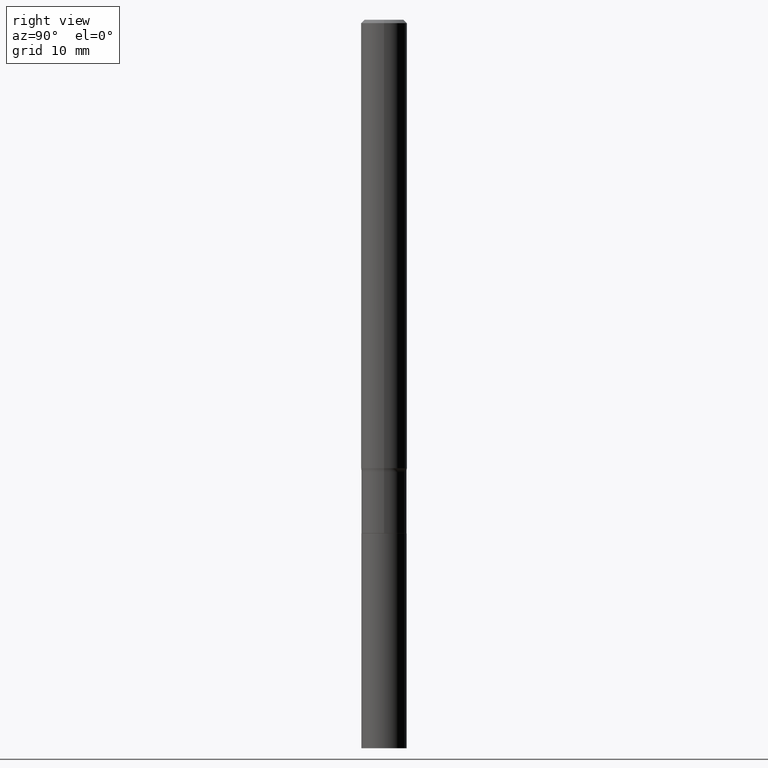
[diagram: clean part render]
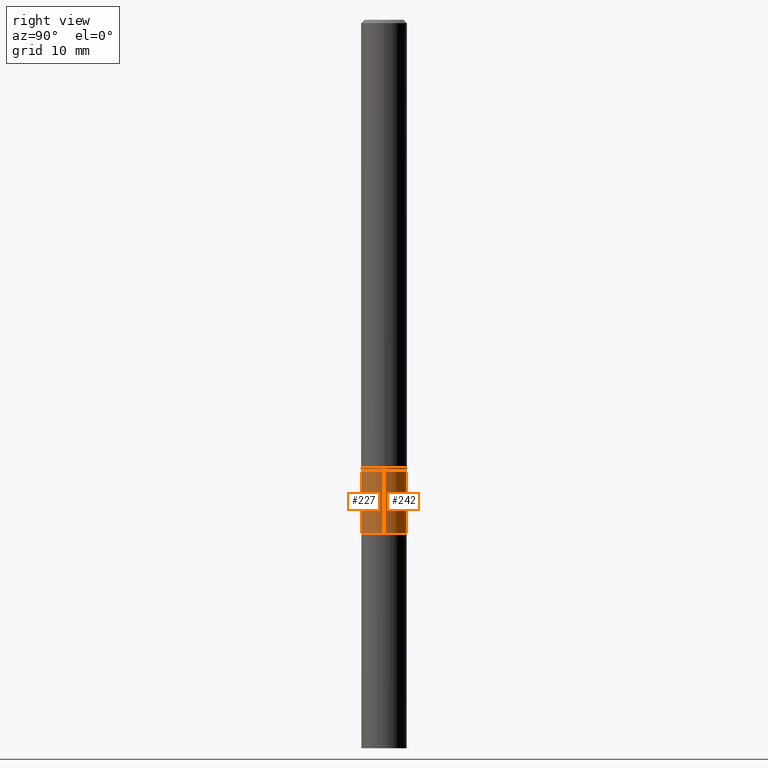
[diagram: same view with one multi-face feature highlighted, each face labeled with its STEP entity id]
A machine part, right view. The highlighted faces form ONE feature: a constant-radius fillet chain: 2 tangent blend faces with common blend radius 2.9502 mm. The faces share edges in the B-rep.
Their STEP definitions:
[1] entity #227 (Cylinder):
#22 = VERTEX_POINT ( 'NONE', #292 ) ;
#33 = EDGE_CURVE ( 'NONE', #215, #22, #85, .T. ) ;
#34 = ORIENTED_EDGE ( 'NONE', *, *, #419, .F. ) ;
#45 = CARTESIAN_POINT ( 'NONE',  ( -0.1161500000000000171, -7.826769944134901983E-15, -2.635699999999999932 ) ) ;
#46 = FACE_OUTER_BOUND ( 'NONE', #175, .T. ) ;
#62 = LINE ( 'NONE', #241, #460 ) ;
#85 = CIRCLE ( 'NONE', #264, 0.1161500000000000032 ) ;
#150 = LINE ( 'NONE', #291, #243 ) ;
#175 = EDGE_LOOP ( 'NONE', ( #415, #355, #283, #34 ) ) ;
#193 = EDGE_CURVE ( 'NONE', #22, #290, #150, .T. ) ;
#196 = CARTESIAN_POINT ( 'NONE',  ( 0.1161499999999999755, -8.912704413664895363E-15, -2.320400000000000240 ) ) ;
#215 = VERTEX_POINT ( 'NONE', #45 ) ;
#216 = AXIS2_PLACEMENT_3D ( 'NONE', #420, #308, #456 ) ;
#225 = CARTESIAN_POINT ( 'NONE',  ( 0.000000000000000000, 0.000000000000000000, 0.000000000000000000 ) ) ;
#227 = ADVANCED_FACE ( 'NONE', ( #46 ), #326, .T. ) ;
#241 = CARTESIAN_POINT ( 'NONE',  ( -0.1161499999999999894, 8.252953875853562903E-16, -5.713343107331072832E-30 ) ) ;
#243 = VECTOR ( 'NONE', #260, 39.37007874015748143 ) ;
#260 = DIRECTION ( 'NONE',  ( -2.445468806185136877E-29, 3.491481338843145188E-15, 1.000000000000000000 ) ) ;
#264 = AXIS2_PLACEMENT_3D ( 'NONE', #444, #448, #316 ) ;
#283 = ORIENTED_EDGE ( 'NONE', *, *, #193, .T. ) ;
#290 = VERTEX_POINT ( 'NONE', #196 ) ;
#291 = CARTESIAN_POINT ( 'NONE',  ( 0.1161499999999999894, -8.110711150132597459E-16, 5.663679325086978398E-30 ) ) ;
#292 = CARTESIAN_POINT ( 'NONE',  ( 0.1161500000000000032, -1.001356847980213890E-14, -2.635699999999999932 ) ) ;
#308 = DIRECTION ( 'NONE',  ( -2.445468806185136597E-29, 3.491481338843145583E-15, 1.000000000000000000 ) ) ;
#316 = DIRECTION ( 'NONE',  ( 1.000000000000000000, -6.982962677686265922E-15, 0.000000000000000000 ) ) ;
#319 = CIRCLE ( 'NONE', #216, 0.1161499999999999755 ) ;
#326 = CYLINDRICAL_SURFACE ( 'NONE', #339, 0.1161499999999999894 ) ;
#335 = CARTESIAN_POINT ( 'NONE',  ( -0.1161499999999999755, -7.826769944134901983E-15, -2.320400000000000240 ) ) ;
#338 = DIRECTION ( 'NONE',  ( 1.000000000000000000, -6.982962677686265922E-15, 4.876176775795935232E-29 ) ) ;
#339 = AXIS2_PLACEMENT_3D ( 'NONE', #225, #407, #338 ) ;
#345 = DIRECTION ( 'NONE',  ( -2.445468806185136877E-29, 3.491481338843145188E-15, 1.000000000000000000 ) ) ;
#355 = ORIENTED_EDGE ( 'NONE', *, *, #33, .T. ) ;
#358 = EDGE_CURVE ( 'NONE', #215, #440, #62, .T. ) ;
#407 = DIRECTION ( 'NONE',  ( -2.445468806185136597E-29, 3.491481338843145583E-15, 1.000000000000000000 ) ) ;
#415 = ORIENTED_EDGE ( 'NONE', *, *, #358, .F. ) ;
#419 = EDGE_CURVE ( 'NONE', #440, #290, #319, .T. ) ;
#420 = CARTESIAN_POINT ( 'NONE',  ( 5.674465817871991056E-29, -8.101633298651635617E-15, -2.320400000000000240 ) ) ;
#440 = VERTEX_POINT ( 'NONE', #335 ) ;
#444 = CARTESIAN_POINT ( 'NONE',  ( 6.445522132462164361E-29, -9.202497364788879155E-15, -2.635699999999999932 ) ) ;
#448 = DIRECTION ( 'NONE',  ( -2.445468806185136597E-29, 3.491481338843145583E-15, 1.000000000000000000 ) ) ;
#456 = DIRECTION ( 'NONE',  ( 1.000000000000000000, -6.982962677686267499E-15, 0.000000000000000000 ) ) ;
#460 = VECTOR ( 'NONE', #345, 39.37007874015748143 ) ;
[2] entity #242 (Cylinder):
#3 = ORIENTED_EDGE ( 'NONE', *, *, #358, .T. ) ;
#9 = DIRECTION ( 'NONE',  ( 1.000000000000000000, -6.982962677686265922E-15, 4.876176775795935232E-29 ) ) ;
#22 = VERTEX_POINT ( 'NONE', #292 ) ;
#28 = ORIENTED_EDGE ( 'NONE', *, *, #166, .T. ) ;
#45 = CARTESIAN_POINT ( 'NONE',  ( -0.1161500000000000171, -7.826769944134901983E-15, -2.635699999999999932 ) ) ;
#62 = LINE ( 'NONE', #241, #460 ) ;
#63 = AXIS2_PLACEMENT_3D ( 'NONE', #78, #334, #402 ) ;
#78 = CARTESIAN_POINT ( 'NONE',  ( 5.674465817871991056E-29, -8.101633298651635617E-15, -2.320400000000000240 ) ) ;
#83 = AXIS2_PLACEMENT_3D ( 'NONE', #375, #116, #445 ) ;
#86 = CARTESIAN_POINT ( 'NONE',  ( 0.000000000000000000, 0.000000000000000000, 0.000000000000000000 ) ) ;
#116 = DIRECTION ( 'NONE',  ( -2.445468806185136597E-29, 3.491481338843145583E-15, 1.000000000000000000 ) ) ;
#150 = LINE ( 'NONE', #291, #243 ) ;
#156 = CYLINDRICAL_SURFACE ( 'NONE', #328, 0.1161499999999999894 ) ;
#166 = EDGE_CURVE ( 'NONE', #22, #215, #176, .T. ) ;
#176 = CIRCLE ( 'NONE', #83, 0.1161500000000000032 ) ;
#191 = FACE_OUTER_BOUND ( 'NONE', #397, .T. ) ;
#193 = EDGE_CURVE ( 'NONE', #22, #290, #150, .T. ) ;
#196 = CARTESIAN_POINT ( 'NONE',  ( 0.1161499999999999755, -8.912704413664895363E-15, -2.320400000000000240 ) ) ;
#212 = EDGE_CURVE ( 'NONE', #290, #440, #406, .T. ) ;
#215 = VERTEX_POINT ( 'NONE', #45 ) ;
#241 = CARTESIAN_POINT ( 'NONE',  ( -0.1161499999999999894, 8.252953875853562903E-16, -5.713343107331072832E-30 ) ) ;
#242 = ADVANCED_FACE ( 'NONE', ( #191 ), #156, .T. ) ;
#243 = VECTOR ( 'NONE', #260, 39.37007874015748143 ) ;
#260 = DIRECTION ( 'NONE',  ( -2.445468806185136877E-29, 3.491481338843145188E-15, 1.000000000000000000 ) ) ;
#265 = DIRECTION ( 'NONE',  ( -2.445468806185136597E-29, 3.491481338843145583E-15, 1.000000000000000000 ) ) ;
#290 = VERTEX_POINT ( 'NONE', #196 ) ;
#291 = CARTESIAN_POINT ( 'NONE',  ( 0.1161499999999999894, -8.110711150132597459E-16, 5.663679325086978398E-30 ) ) ;
#292 = CARTESIAN_POINT ( 'NONE',  ( 0.1161500000000000032, -1.001356847980213890E-14, -2.635699999999999932 ) ) ;
#328 = AXIS2_PLACEMENT_3D ( 'NONE', #86, #265, #9 ) ;
#334 = DIRECTION ( 'NONE',  ( -2.445468806185136597E-29, 3.491481338843145583E-15, 1.000000000000000000 ) ) ;
#335 = CARTESIAN_POINT ( 'NONE',  ( -0.1161499999999999755, -7.826769944134901983E-15, -2.320400000000000240 ) ) ;
#345 = DIRECTION ( 'NONE',  ( -2.445468806185136877E-29, 3.491481338843145188E-15, 1.000000000000000000 ) ) ;
#358 = EDGE_CURVE ( 'NONE', #215, #440, #62, .T. ) ;
#365 = ORIENTED_EDGE ( 'NONE', *, *, #193, .F. ) ;
#375 = CARTESIAN_POINT ( 'NONE',  ( 6.445522132462164361E-29, -9.202497364788879155E-15, -2.635699999999999932 ) ) ;
#387 = ORIENTED_EDGE ( 'NONE', *, *, #212, .F. ) ;
#397 = EDGE_LOOP ( 'NONE', ( #28, #3, #387, #365 ) ) ;
#402 = DIRECTION ( 'NONE',  ( 1.000000000000000000, -6.982962677686267499E-15, 0.000000000000000000 ) ) ;
#406 = CIRCLE ( 'NONE', #63, 0.1161499999999999755 ) ;
#440 = VERTEX_POINT ( 'NONE', #335 ) ;
#445 = DIRECTION ( 'NONE',  ( 1.000000000000000000, -6.982962677686265922E-15, 0.000000000000000000 ) ) ;
#460 = VECTOR ( 'NONE', #345, 39.37007874015748143 ) ;